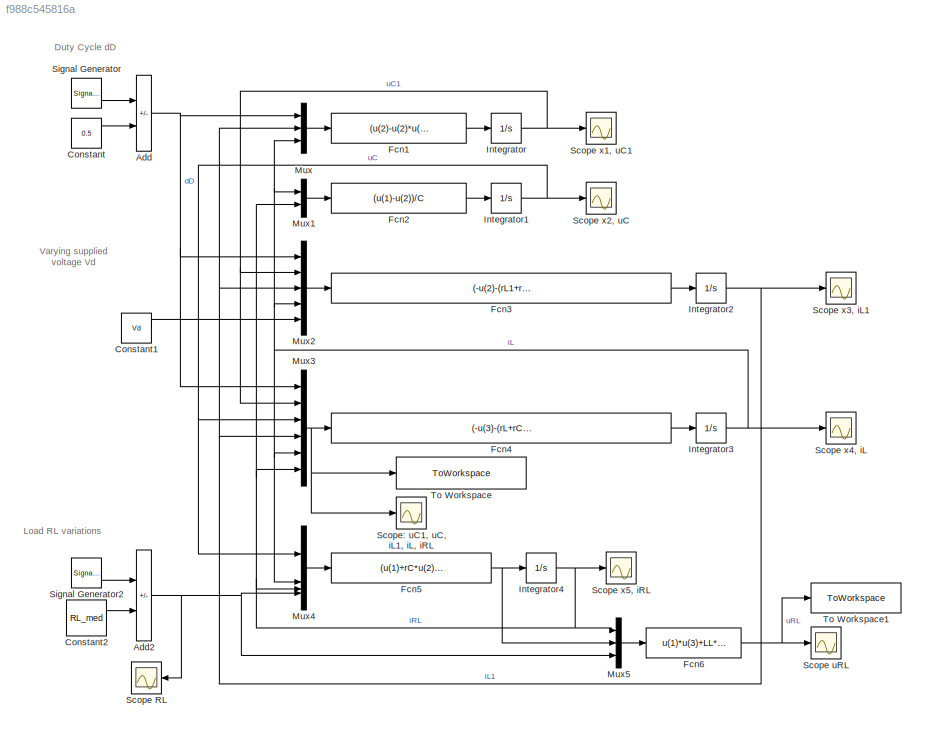
MODEL slx_f988c545816a
KIND model
CONFIG AbsTol = auto
CONFIG EnableMultiTasking = on
CONFIG FixedStep = auto
CONFIG MaxStep = auto
CONFIG MinStep = auto
CONFIG RelTol = 1e-3
CONFIG SampleTimeConstraint = Unconstrained
CONFIG SolverName = ode45
CONFIG StartTime = 0.0
CONFIG StopTime = 0.05
BLOCK [Sum] Add
  IconShape = rectangular
  Inputs = -+
BLOCK [Sum] Add2
  IconShape = rectangular
  Inputs = -+
BLOCK [Constant] Constant
  Value = 0.5
BLOCK [Constant] Constant1
  Value = Vd
BLOCK [Constant] Constant2
  Value = RL_med
BLOCK [Fcn] Fcn1
  Expr = (u(2)-u(2)*u(1)+u(3)*u(1))/C1
BLOCK [Fcn] Fcn2
  Expr = (u(1)-u(2))/C
BLOCK [Fcn] Fcn3
  Expr = (-u(2)-(rL1+rC1)*u(3)+u(1)*u(2)+(rC1-rs)*u(3)*u(1)+rs*u(4)*u(1)+u(5))/L1
BLOCK [Fcn] Fcn4
  Expr = (-u(3)-(rL+rC)*u(5)+rC*u(6)-u(1)*u(2)+rs*u(4)*u(1)-(rC1+rs)*u(5)*u(1))/L
BLOCK [Fcn] Fcn5
  Expr = (u(1)+rC*u(2)-(rC+u(4))*u(3))/LL
BLOCK [Fcn] Fcn6
  Expr = u(1)*u(3)+LL*u(2)
BLOCK [Integrator] Integrator
BLOCK [Integrator] Integrator1
BLOCK [Integrator] Integrator2
BLOCK [Integrator] Integrator3
BLOCK [Integrator] Integrator4
BLOCK [Mux] Mux
  DisplayOption = bar
  Inputs = 3
BLOCK [Mux] Mux1
  DisplayOption = bar
  Inputs = 2
BLOCK [Mux] Mux2
  DisplayOption = bar
  Inputs = 5
BLOCK [Mux] Mux3
  DisplayOption = bar
  Inputs = 6
BLOCK [Mux] Mux4
  DisplayOption = bar
BLOCK [Mux] Mux5
  DisplayOption = bar
  Inputs = 3
BLOCK [Scope] Scope RL
  Floating = off
  NumInputPorts = 1
  ScopeSpecificationString = Simulink.scopes.TimeScopeBlockCfg('CurrentConfiguration', extmgr.ConfigurationSet(extmgr.Configuration('Core','General UI',true),extmgr.Configuration('Core','Source UI',true),extmgr.Configuration('Sources','WiredSimulink',true,'DataLoggingVariableName','ScopeData7'),extmgr.Configuration('Visuals','Time Domain',true,'SerializedDisplays',{struct('MinYLimReal','7.5','MaxYLimReal','32.5','YLabelReal',...<+1333ch>
BLOCK [Scope] Scope uRL
  Floating = off
  NumInputPorts = 1
  ScopeSpecificationString = Simulink.scopes.TimeScopeBlockCfg('CurrentConfiguration', extmgr.ConfigurationSet(extmgr.Configuration('Core','General UI',true),extmgr.Configuration('Core','Source UI',true),extmgr.Configuration('Sources','WiredSimulink',true,'DataLoggingVariableName','ScopeData5'),extmgr.Configuration('Visuals','Time Domain',true,'SerializedDisplays',{struct('MinYLimReal','-53.42839','MaxYLimReal','22.20043','YL...<+1521ch>
BLOCK [Scope] Scope x1, uC1
  Floating = off
  NumInputPorts = 1
  ScopeSpecificationString = Simulink.scopes.TimeScopeBlockCfg('CurrentConfiguration', extmgr.ConfigurationSet(extmgr.Configuration('Core','General UI',true),extmgr.Configuration('Core','Source UI',true),extmgr.Configuration('Sources','WiredSimulink',true),extmgr.Configuration('Visuals','Time Domain',true,'SerializedDisplays',{struct('MinYLimReal','-31.53299','MaxYLimReal','75.03738','YLabelReal','','MinYLimMag','0.00000','Ma...<+1329ch>
BLOCK [Scope] Scope x2, uC
  Floating = off
  NumInputPorts = 1
  ScopeSpecificationString = Simulink.scopes.TimeScopeBlockCfg('CurrentConfiguration', extmgr.ConfigurationSet(extmgr.Configuration('Core','General UI',true),extmgr.Configuration('Core','Source UI',true),extmgr.Configuration('Sources','WiredSimulink',true,'DataLoggingVariableName','ScopeData1'),extmgr.Configuration('Visuals','Time Domain',true),extmgr.Configuration('Tools','Plot Navigation',true),extmgr.Configuration('Tools',...<+40ch>
BLOCK [Scope] Scope x3, iL1
  Floating = off
  NumInputPorts = 1
  ScopeSpecificationString = Simulink.scopes.TimeScopeBlockCfg('CurrentConfiguration', extmgr.ConfigurationSet(extmgr.Configuration('Core','General UI',true),extmgr.Configuration('Core','Source UI',true),extmgr.Configuration('Sources','WiredSimulink',true,'DataLoggingVariableName','ScopeData2'),extmgr.Configuration('Visuals','Time Domain',true,'SerializedDisplays',{struct('MinYLimReal','-17.69438','MaxYLimReal','32.83981','YL...<+1368ch>
BLOCK [Scope] Scope x4, iL
  Floating = off
  NumInputPorts = 1
  ScopeSpecificationString = Simulink.scopes.TimeScopeBlockCfg('CurrentConfiguration', extmgr.ConfigurationSet(extmgr.Configuration('Core','General UI',true),extmgr.Configuration('Core','Source UI',true),extmgr.Configuration('Sources','WiredSimulink',true,'DataLoggingVariableName','ScopeData3'),extmgr.Configuration('Visuals','Time Domain',true),extmgr.Configuration('Tools','Plot Navigation',true),extmgr.Configuration('Tools',...<+58ch>
BLOCK [Scope] Scope x5, iRL
  Floating = off
  NumInputPorts = 1
  ScopeSpecificationString = Simulink.scopes.TimeScopeBlockCfg('CurrentConfiguration', extmgr.ConfigurationSet(extmgr.Configuration('Core','General UI',true),extmgr.Configuration('Core','Source UI',true),extmgr.Configuration('Sources','WiredSimulink',true,'DataLoggingVariableName','ScopeData4'),extmgr.Configuration('Visuals','Time Domain',true),extmgr.Configuration('Tools','Plot Navigation',true),extmgr.Configuration('Tools',...<+58ch>
BLOCK [Scope] Scope: uC1, uC, iL1, iL, iRL
  Floating = off
  NumInputPorts = 1
  ScopeSpecificationString = Simulink.scopes.TimeScopeBlockCfg('CurrentConfiguration', extmgr.ConfigurationSet(extmgr.Configuration('Core','General UI',true),extmgr.Configuration('Core','Source UI',true),extmgr.Configuration('Sources','WiredSimulink',true,'DataLoggingVariableName','ScopeData6'),extmgr.Configuration('Visuals','Time Domain',true,'SerializedDisplays',{struct('MinYLimReal','-71.20206','MaxYLimReal','111.1088','YL...<+1584ch>
BLOCK [SignalGenerator] Signal Generator
  Amplitude = 0.25
  Frequency = fD
  WaveForm = square
BLOCK [SignalGenerator] Signal Generator2
  Amplitude = 10
  Frequency = fL
  WaveForm = square
BLOCK [ToWorkspace] To Workspace
  FixptAsFi = on
  MaxDataPoints = inf
  SampleTime = -1
  SaveFormat = Timeseries
  VariableName = out_uC1_uC_iL1_iL_iRL
BLOCK [ToWorkspace] To Workspace1
  FixptAsFi = on
  MaxDataPoints = inf
  SampleTime = -1
  SaveFormat = Timeseries
  VariableName = out_uRL
ANNOTATION (root): Load RL variations
ANNOTATION (root): Varying supplied voltage Vd
ANNOTATION (root): Duty Cycle dD
NET Add2:1 -> Mux4:4, Mux5:3, Scope RL:1
NET Add:1 -> Mux2:1, Mux3:1, Mux:1
LINE Constant1:1 -> Mux2:5
LINE Constant2:1 -> Add2:2
LINE Constant:1 -> Add:2
LINE Fcn1:1 -> Integrator:1
LINE Fcn2:1 -> Integrator1:1
LINE Fcn3:1 -> Integrator2:1
LINE Fcn4:1 -> Integrator3:1
NET Fcn5:1 -> Integrator4:1, Mux5:2
NET Fcn6:1 -> Scope uRL:1, To Workspace1:1
NET Integrator1:1 -> Mux3:3, Mux4:1, Scope x2, uC:1
NET Integrator2:1 -> Mux2:3, Mux3:4, Mux:2, Scope x3, iL1:1
NET Integrator3:1 -> Mux1:1, Mux2:4, Mux3:5, Mux4:2, Mux:3, Scope x4, iL:1
NET Integrator4:1 -> Mux1:2, Mux3:6, Mux4:3, Mux5:1, Scope x5, iRL:1
NET Integrator:1 -> Mux2:2, Mux3:2, Scope x1, uC1:1
LINE Mux1:1 -> Fcn2:1
LINE Mux2:1 -> Fcn3:1
NET Mux3:1 -> Fcn4:1, Scope: uC1, uC, iL1, iL, iRL:1, To Workspace:1
LINE Mux4:1 -> Fcn5:1
LINE Mux5:1 -> Fcn6:1
LINE Mux:1 -> Fcn1:1
LINE Signal Generator2:1 -> Add2:1
LINE Signal Generator:1 -> Add:1
note: NET lines group one-source signal fan-out (src -> all destinations, sorted); 1:1 wires keep LINE
